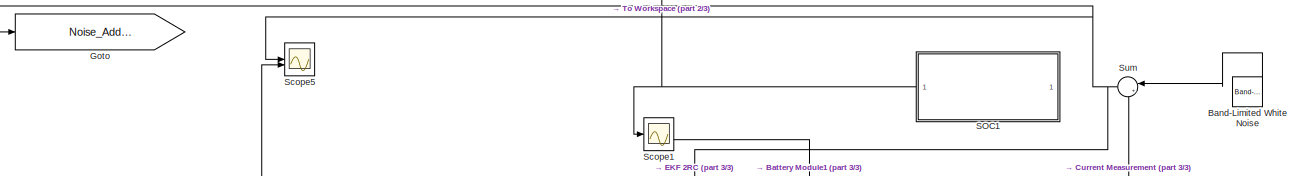
[diagram: root canvas - part 1/3, top center region]
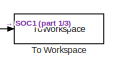
[diagram: root canvas - part 2/3, top left region]
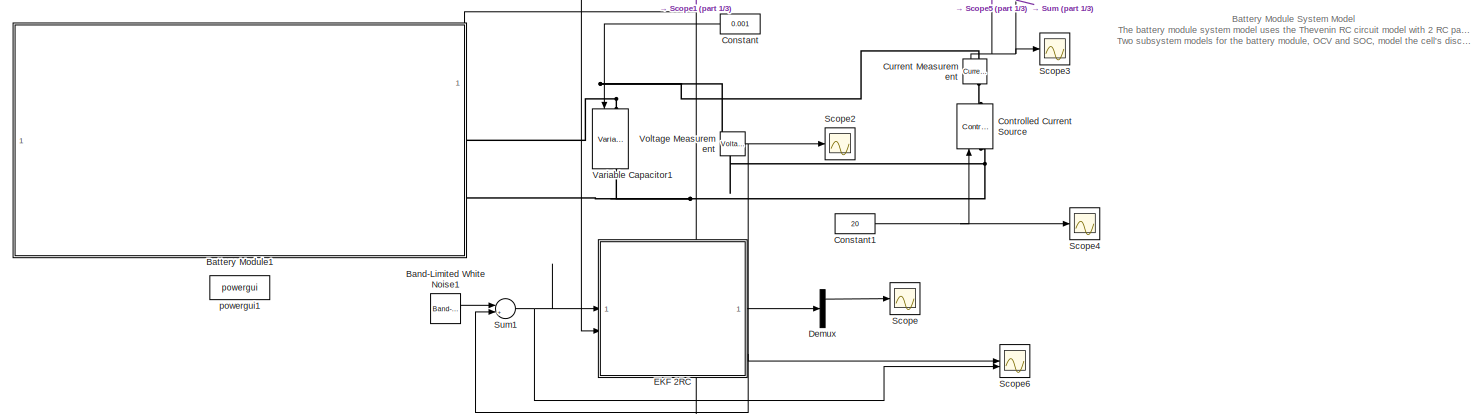
[diagram: root canvas - part 3/3, full width, middle band]
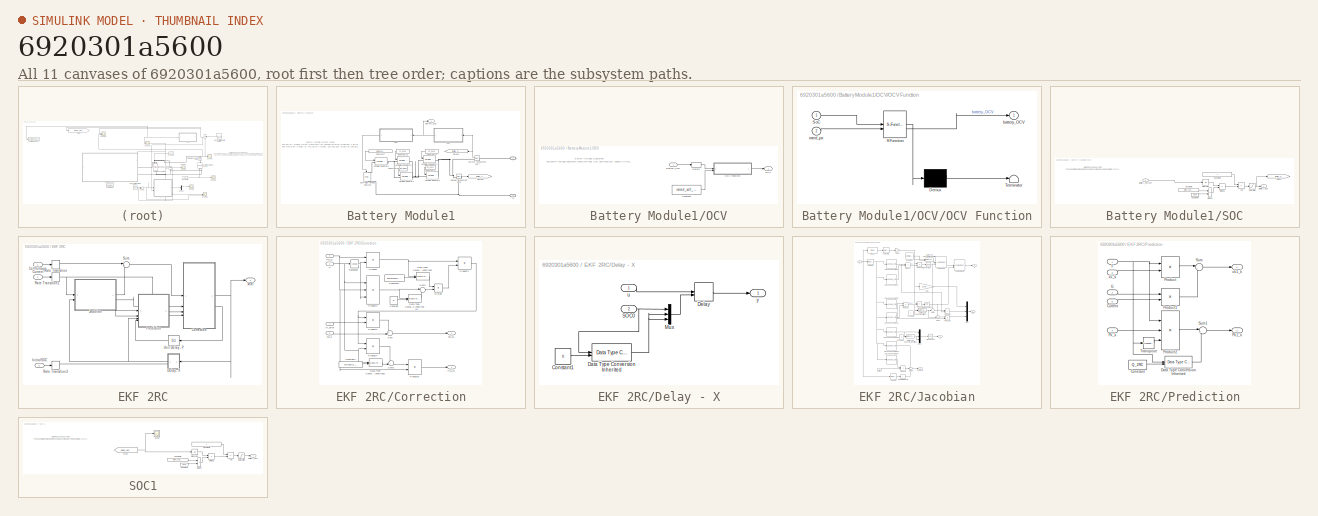
[diagram: thumbnail index - all 11 canvases of the model, root first then tree order]
MODEL slx_6920301a5600
KIND model
CONFIG AbsTol = auto
CONFIG EnableMultiTasking = off
CONFIG FixedStep = 500e-6
CONFIG MaxStep = auto
CONFIG MinStep = auto
CONFIG RelTol = 1e-3
CONFIG SampleTimeConstraint = Unconstrained
CONFIG SolverName = VariableStepAuto
CONFIG StartTime = 0.0
CONFIG StopTime = 10
BLOCK [Reference] Band-Limited White Noise  REF=simulink/Sources/Band-Limited
White Noise
  SourceBlock = simulink/Sources/Band-Limited\nWhite Noise
  SourceType = Band-Limited White Noise.
BLOCK [Reference] Band-Limited White Noise1  REF=simulink/Sources/Band-Limited
White Noise
  SourceBlock = simulink/Sources/Band-Limited\nWhite Noise
  SourceType = Band-Limited White Noise.
BLOCK [SubSystem] Battery Module1
  PortSchema = {"entries":[{"content":{"sides":[{"content":{},"type":"ConnectorPlacement.EquallySpacedRectSide","uuid":"1cf2e637-c056-448b-9d8f-ed664b461c4e"},{"content":{"connectorIds":["RConn1","RConn2"],"side":"RIGHT"},"type":"ConnectorPlacement.EquallySpacedRectSide","uuid":"9015fd1e-0347-435a-aa67-edb519119c95"},{"content":{"connectorIds":["Out1"],"side":"TOP"},"type":"ConnectorPlacement.EquallySpacedRectSi...<+235ch>
BLOCK [PMIOPort] Battery Module1/+
  Side = Right
BLOCK [PMIOPort] Battery Module1/+1
  Port = 2
  Side = Right
BLOCK [Outport] Battery Module1/Battery_SoC
BLOCK [Constant] Battery Module1/Constant10
  Value = R1_pack
BLOCK [Constant] Battery Module1/Constant12
  Value = C1_pack
BLOCK [Constant] Battery Module1/Constant13
  Value = R2_pack
BLOCK [Constant] Battery Module1/Constant14
  Value = C2_pack
BLOCK [Constant] Battery Module1/Constant7
  Value = internal_resistance_pack
BLOCK [Reference] Battery Module1/Controlled Voltage Source3  REF=spsControlledVoltageSourceLib/Controlled Voltage Source
  NameLocation = top
  SourceBlock = spsControlledVoltageSourceLib/Controlled Voltage Source
  SourceType = Controlled Voltage Source
BLOCK [Reference] Battery Module1/Current Measurement7  REF=spsCurrentMeasurementLib/Current Measurement
  NameLocation = top
  SourceBlock = spsCurrentMeasurementLib/Current Measurement
  SourceType = Current Measurement
  UserDataPersistent = on
BLOCK [Goto] Battery Module1/Goto20
  GotoTag = Battery_Voltage
  TagVisibility = global
BLOCK [Goto] Battery Module1/Goto21
  GotoTag = Battery_Current
  TagVisibility = global
BLOCK [SubSystem] Battery Module1/OCV
  NameLocation = top
BLOCK [Inport] Battery Module1/OCV/Battery_SoC
BLOCK [Constant] Battery Module1/OCV/Constant
  Value = rated_cell_capacity
BLOCK [Delay] Battery Module1/OCV/Delay2
  DelayLength = 1
  InitialCondition = 1
  InputPortMap = u0
BLOCK [Outport] Battery Module1/OCV/OCV
BLOCK [SubSystem] Battery Module1/OCV/OCV Function
  ErrorFcn = Stateflow.Translate.translate
  PermitHierarchicalResolution = ExplicitOnly
  SFBlockType = MATLAB Function
  TreatAsAtomicUnit = on
BLOCK [Demux] Battery Module1/OCV/OCV Function/ Demux 
  Outputs = 1
BLOCK [S-Function] Battery Module1/OCV/OCV Function/ SFunction 
  EnableBusSupport = on
  FunctionName = sf_sfun
  PortCounts = [2 2]
  SFcnIsStateOwnerBlock = off
  SFunctionDeploymentMode = off
  Tag = Stateflow S-Function 2
BLOCK [Terminator] Battery Module1/OCV/OCV Function/ Terminator 
BLOCK [Inport] Battery Module1/OCV/OCV Function/SoC
BLOCK [Outport] Battery Module1/OCV/OCV Function/battery_OCV
BLOCK [Inport] Battery Module1/OCV/OCV Function/rated_pa
  Port = 2
BLOCK [SubSystem] Battery Module1/SOC
  NameLocation = top
BLOCK [Sum] Battery Module1/SOC/Add
  IconShape = rectangular
  Inputs = +-
BLOCK [Inport] Battery Module1/SOC/Battery_Current
BLOCK [Outport] Battery Module1/SOC/Battery_SoC
BLOCK [Constant] Battery Module1/SOC/Constant4
  Value = 3600
BLOCK [Constant] Battery Module1/SOC/Constant5
  Value = rated_cell_capacity
BLOCK [Constant] Battery Module1/SOC/Constant6
BLOCK [Product] Battery Module1/SOC/Divide3
  Inputs = */
BLOCK [Product] Battery Module1/SOC/Divide4
  Inputs = **
BLOCK [Goto] Battery Module1/SOC/Goto23
  GotoTag = Battery_SoC
  TagVisibility = global
BLOCK [Integrator] Battery Module1/SOC/Integrator
BLOCK [Saturate] Battery Module1/SOC/Saturation
  LowerLimit = 0
  UpperLimit = 1
BLOCK [Reference] Battery Module1/Variable Capacitor3  REF=spsVariableCapacitorLib/Variable Capacitor
  SourceBlock = spsVariableCapacitorLib/Variable Capacitor
  SourceType = Variable Capacitor
BLOCK [Reference] Battery Module1/Variable Capacitor4  REF=spsVariableCapacitorLib/Variable Capacitor
  SourceBlock = spsVariableCapacitorLib/Variable Capacitor
  SourceType = Variable Capacitor
BLOCK [Reference] Battery Module1/Variable Resistor1  REF=spsVariableResistorLib/Variable Resistor
  SourceBlock = spsVariableResistorLib/Variable Resistor
  SourceType = Variable Resistor
BLOCK [Reference] Battery Module1/Variable Resistor2  REF=spsVariableResistorLib/Variable Resistor
  SourceBlock = spsVariableResistorLib/Variable Resistor
  SourceType = Variable Resistor
BLOCK [Reference] Battery Module1/Variable Resistor6  REF=spsVariableResistorLib/Variable Resistor
  LibrarySourceBlock = sps_lib/Passives/Variable Resistor
  SourceBlock = spsVariableResistorLib/Variable Resistor
  SourceType = Variable Resistor
BLOCK [Reference] Battery Module1/Voltage Measurement5  REF=spsVoltageMeasurementLib/Voltage Measurement
  SourceBlock = spsVoltageMeasurementLib/Voltage Measurement
  SourceType = Voltage Measurement
  UserDataPersistent = on
BLOCK [Constant] Constant
  NameLocation = top
  Value = 0.001
BLOCK [Constant] Constant1
  Value = 20
BLOCK [Reference] Controlled Current Source  REF=spsControlledCurrentSourceLib/Controlled Current Source
  LibrarySourceBlock = sps_lib/Sources/Controlled Current Source
  SourceBlock = spsControlledCurrentSourceLib/Controlled Current Source
  SourceType = Controlled Current Source
BLOCK [Reference] Current Measurement  REF=spsCurrentMeasurementLib/Current Measurement
  LibrarySourceBlock = sps_lib/Sensors and Measurements/Current Measurement
  NameLocation = right
  SourceBlock = spsCurrentMeasurementLib/Current Measurement
  SourceType = Current Measurement
  UserDataPersistent = on
BLOCK [Demux] Demux
  Outputs = 3
BLOCK [SubSystem] EKF 2RC
  LibrarySourceBlock = BatteryEstimators/SOC Estimator\n(Kalman Filter)/Kalman Filter/EKF 2RC
  VariantControl = EKF 2RC
BLOCK [Inport] EKF 2RC/CellVoltage
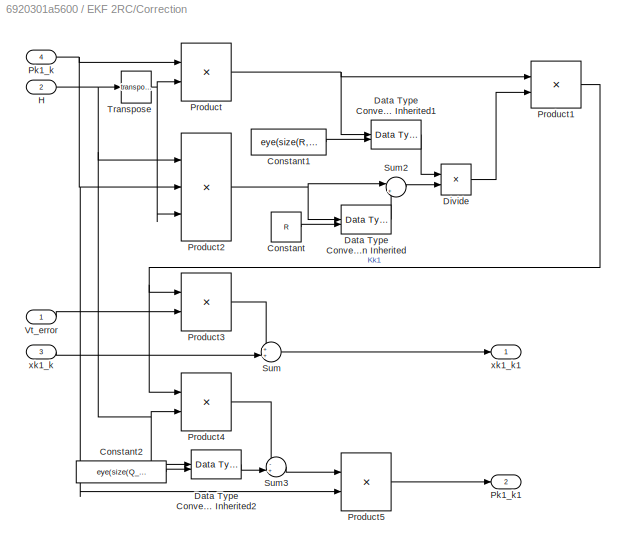
BLOCK [SubSystem] EKF 2RC/Correction
BLOCK [Constant] EKF 2RC/Correction/Constant
  Value = R
BLOCK [Constant] EKF 2RC/Correction/Constant1
  Value = eye(size(R,1))
BLOCK [Constant] EKF 2RC/Correction/Constant2
  Value = eye(size(Q_2RC,1))
BLOCK [Reference] EKF 2RC/Correction/Data Type Conversion Inherited  REF=simulink/Signal
Attributes/Data Type
Conversion
Inherited
  SourceBlock = simulink/Signal\nAttributes/Data Type\nConversion\nInherited
  SourceType = Conversion Inherited
BLOCK [Reference] EKF 2RC/Correction/Data Type Conversion Inherited1  REF=simulink/Signal
Attributes/Data Type
Conversion
Inherited
  SourceBlock = simulink/Signal\nAttributes/Data Type\nConversion\nInherited
  SourceType = Conversion Inherited
BLOCK [Reference] EKF 2RC/Correction/Data Type Conversion Inherited2  REF=simulink/Signal
Attributes/Data Type
Conversion
Inherited
  SourceBlock = simulink/Signal\nAttributes/Data Type\nConversion\nInherited
  SourceType = Conversion Inherited
BLOCK [Product] EKF 2RC/Correction/Divide
  Inputs = */
  Multiplication = Matrix(*)
BLOCK [Inport] EKF 2RC/Correction/H
  Port = 2
BLOCK [Inport] EKF 2RC/Correction/Pk1_k
  Port = 4
BLOCK [Outport] EKF 2RC/Correction/Pk1_k1
  Port = 2
BLOCK [Product] EKF 2RC/Correction/Product
  Multiplication = Matrix(*)
BLOCK [Product] EKF 2RC/Correction/Product1
  Multiplication = Matrix(*)
BLOCK [Product] EKF 2RC/Correction/Product2
  Inputs = 3
  Multiplication = Matrix(*)
BLOCK [Product] EKF 2RC/Correction/Product3
  Multiplication = Matrix(*)
BLOCK [Product] EKF 2RC/Correction/Product4
  Multiplication = Matrix(*)
BLOCK [Product] EKF 2RC/Correction/Product5
  Multiplication = Matrix(*)
BLOCK [Sum] EKF 2RC/Correction/Sum
  Inputs = ++|
BLOCK [Sum] EKF 2RC/Correction/Sum2
  Inputs = |++
BLOCK [Sum] EKF 2RC/Correction/Sum3
  Inputs = -+|
BLOCK [Math] EKF 2RC/Correction/Transpose
  Operator = transpose
BLOCK [Inport] EKF 2RC/Correction/Vt_error
BLOCK [Inport] EKF 2RC/Correction/xk1_k
  Port = 3
BLOCK [Outport] EKF 2RC/Correction/xk1_k1
BLOCK [Inport] EKF 2RC/Current
  Port = 2
BLOCK [SubSystem] EKF 2RC/Delay - X
  PortSchema = {"entries":[{"content":{"sides":[{"content":{"connectorIds":["In1"]},"type":"ConnectorPlacement.EquallySpacedRectSide","uuid":"3362b6e3-9ef0-414f-8c36-2f543f704d9c"},{"content":{"connectorIds":["Out1","In2"],"side":"RIGHT"},"type":"ConnectorPlacement.EquallySpacedRectSide","uuid":"11e7d0c5-4a27-4b8c-b505-ab30596c2b25"},{"content":{"connectorIds":[],"side":"TOP"},"type":"ConnectorPlacement.EquallyS...<+246ch>
BLOCK [Constant] EKF 2RC/Delay - X/Constant1
  Value = 0
BLOCK [Reference] EKF 2RC/Delay - X/Data Type Conversion Inherited  REF=simulink/Signal
Attributes/Data Type
Conversion
Inherited
  SourceBlock = simulink/Signal\nAttributes/Data Type\nConversion\nInherited
  SourceType = Conversion Inherited
BLOCK [Delay] EKF 2RC/Delay - X/Delay
  DelayLength = 1
  InitialConditionSource = Input port
  InputPortMap = u0,p4
BLOCK [Mux] EKF 2RC/Delay - X/Mux
  DisplayOption = bar
  Inputs = 3
BLOCK [Inport] EKF 2RC/Delay - X/SOC0
  Port = 2
BLOCK [Inport] EKF 2RC/Delay - X/u
BLOCK [Outport] EKF 2RC/Delay - X/y
BLOCK [Inport] EKF 2RC/InitialSOC
  Port = 3
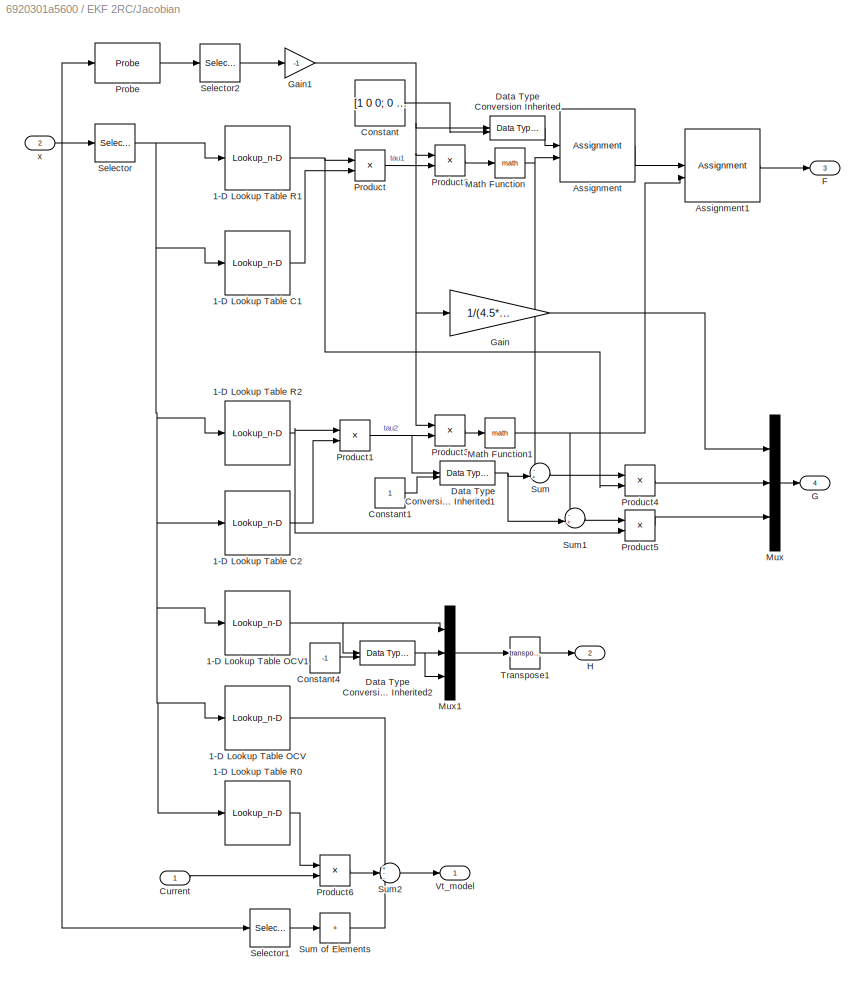
BLOCK [SubSystem] EKF 2RC/Jacobian
BLOCK [Lookup_n-D] EKF 2RC/Jacobian/1-D Lookup Table C1
  BreakpointsForDimension1 = [0,10,20,30,40,50,60,70,80,90,100]
  BreakpointsForDimension2 = T_vec
  InputPortMap = u0
  InternalRulePriority = Speed
  NumberOfTableDimensions = 1
  RndMeth = Simplest
  Table = [1000,1100,1200,1300,1400,1500,1600,1700,1800,1900,2000]
BLOCK [Lookup_n-D] EKF 2RC/Jacobian/1-D Lookup Table C2
  BreakpointsForDimension1 = [10,20,30,40,50,60,70,80,90,100]
  BreakpointsForDimension2 = T_vec
  InputPortMap = u0
  InternalRulePriority = Speed
  NumberOfTableDimensions = 1
  RndMeth = Simplest
  Table = [500,550,600,650,700,750,800,850,900,950]
BLOCK [Lookup_n-D] EKF 2RC/Jacobian/1-D Lookup Table OCV
  BreakpointsForDimension1 = [10,20,30,40,50,60,70,80,90,100]
  BreakpointsForDimension2 = T_vec
  InputPortMap = u0
  InternalRulePriority = Speed
  NumberOfTableDimensions = 1
  RndMeth = Simplest
  Table = [3.2,3.3,3.4,3.5,3.6,3.7,3.8,3.9,4.0,4.1]
BLOCK [Lookup_n-D] EKF 2RC/Jacobian/1-D Lookup Table OCV1
  BreakpointsForDimension1 = [10,20,30,40,50,60,70,80,90,100]
  BreakpointsForDimension2 = T_vec
  InputPortMap = u0
  InternalRulePriority = Speed
  NumberOfTableDimensions = 1
  RndMeth = Simplest
  Table = [0.05,0.04,0.04,0.03,0.02,0.02,0.02,0.01,0.01,0.00]
BLOCK [Lookup_n-D] EKF 2RC/Jacobian/1-D Lookup Table R0
  BreakpointsForDimension1 = [0,10,20,30,40,50,60,70,80,90,100]
  BreakpointsForDimension2 = T_vec
  InputPortMap = u0
  InternalRulePriority = Speed
  NumberOfTableDimensions = 1
  RndMeth = Simplest
  Table = [0.05,0.045,0.04,0.035,0.03,0.025,0.02,0.015,0.01,0.005,0.001]
BLOCK [Lookup_n-D] EKF 2RC/Jacobian/1-D Lookup Table R1
  BreakpointsForDimension1 = [0,10,20,30,40,50,60,70,80,90,100]
  BreakpointsForDimension2 = T_vec
  InputPortMap = u0
  InternalRulePriority = Speed
  NumberOfTableDimensions = 1
  RndMeth = Simplest
  Table = [0.02,0.018,0.016,0.014,0.012,0.01,0.008,0.006,0.004,0.002,0.001]
BLOCK [Lookup_n-D] EKF 2RC/Jacobian/1-D Lookup Table R2
  BreakpointsForDimension1 = [0,10,20,30,40,50,60,70,80,90,100]
  BreakpointsForDimension2 = T_vec
  InputPortMap = u0
  InternalRulePriority = Speed
  NumberOfTableDimensions = 1
  RndMeth = Simplest
  Table = [0.05,0.045,0.04,0.035,0.03,0.025,0.02,0.015,0.01,0.005,0.001]
BLOCK [Assignment] EKF 2RC/Jacobian/Assignment
  DiagnosticForDimensions = Warning
  IndexOptions = Index vector (dialog),Index vector (dialog)
  Indices = 2,2
  NumberOfDimensions = 2
  OutputSizes = 1,1
BLOCK [Assignment] EKF 2RC/Jacobian/Assignment1
  DiagnosticForDimensions = Warning
  IndexOptions = Index vector (dialog),Index vector (dialog)
  Indices = 3,3
  NumberOfDimensions = 2
  OutputSizes = 1,1
BLOCK [Constant] EKF 2RC/Jacobian/Constant
  Value = [1 0  0;\n0 0 0;\n0 0 0]
BLOCK [Constant] EKF 2RC/Jacobian/Constant1
BLOCK [Constant] EKF 2RC/Jacobian/Constant4
  Value = -1
BLOCK [Inport] EKF 2RC/Jacobian/Current
BLOCK [Reference] EKF 2RC/Jacobian/Data Type Conversion Inherited  REF=simulink/Signal
Attributes/Data Type
Conversion
Inherited
  SourceBlock = simulink/Signal\nAttributes/Data Type\nConversion\nInherited
  SourceType = Conversion Inherited
BLOCK [Reference] EKF 2RC/Jacobian/Data Type Conversion Inherited1  REF=simulink/Signal
Attributes/Data Type
Conversion
Inherited
  SourceBlock = simulink/Signal\nAttributes/Data Type\nConversion\nInherited
  SourceType = Conversion Inherited
BLOCK [Reference] EKF 2RC/Jacobian/Data Type Conversion Inherited2  REF=simulink/Signal
Attributes/Data Type
Conversion
Inherited
  SourceBlock = simulink/Signal\nAttributes/Data Type\nConversion\nInherited
  SourceType = Conversion Inherited
BLOCK [Outport] EKF 2RC/Jacobian/F
  Port = 3
BLOCK [Outport] EKF 2RC/Jacobian/G
  Port = 4
BLOCK [Gain] EKF 2RC/Jacobian/Gain
  Gain = 1/(4.5*3600)
BLOCK [Gain] EKF 2RC/Jacobian/Gain1
  Gain = -1
BLOCK [Outport] EKF 2RC/Jacobian/H
  Port = 2
BLOCK [Math] EKF 2RC/Jacobian/Math Function
BLOCK [Math] EKF 2RC/Jacobian/Math Function1
BLOCK [Mux] EKF 2RC/Jacobian/Mux
  DisplayOption = bar
  Inputs = 3
BLOCK [Mux] EKF 2RC/Jacobian/Mux1
  DisplayOption = bar
  Inputs = 3
BLOCK [Probe] EKF 2RC/Jacobian/Probe
  ProbeComplexSignal = off
  ProbeSampleTimeDataType = Same as input
  ProbeWidth = off
BLOCK [Product] EKF 2RC/Jacobian/Product
BLOCK [Product] EKF 2RC/Jacobian/Product1
BLOCK [Product] EKF 2RC/Jacobian/Product2
  Inputs = */
BLOCK [Product] EKF 2RC/Jacobian/Product3
  Inputs = */
BLOCK [Product] EKF 2RC/Jacobian/Product4
BLOCK [Product] EKF 2RC/Jacobian/Product5
BLOCK [Product] EKF 2RC/Jacobian/Product6
BLOCK [Selector] EKF 2RC/Jacobian/Selector
  IndexOptions = Index vector (dialog)
  Indices = 1
  InputPortWidth = 3
  OutputSizes = 1
BLOCK [Selector] EKF 2RC/Jacobian/Selector1
  IndexOptions = Index vector (dialog)
  Indices = [2 3]
  InputPortWidth = 3
  OutputSizes = 1
BLOCK [Selector] EKF 2RC/Jacobian/Selector2
  IndexOptions = Index vector (dialog)
  Indices = 1
  InputPortWidth = 2
  OutputSizes = 1
BLOCK [Sum] EKF 2RC/Jacobian/Sum
  Inputs = -+|
BLOCK [Sum] EKF 2RC/Jacobian/Sum of Elements
  IconShape = rectangular
  Inputs = +
BLOCK [Sum] EKF 2RC/Jacobian/Sum1
  Inputs = -+|
BLOCK [Sum] EKF 2RC/Jacobian/Sum2
  Inputs = +--
BLOCK [Math] EKF 2RC/Jacobian/Transpose1
  Operator = transpose
BLOCK [Outport] EKF 2RC/Jacobian/Vt_model
BLOCK [Inport] EKF 2RC/Jacobian/x
  Port = 2
BLOCK [SubSystem] EKF 2RC/Prediction
  PortSchema = {"entries":[{"content":{"sides":[{"content":{"connectorIds":["In1","In2","In3","In4"]},"type":"ConnectorPlacement.EquallySpacedRectSide","uuid":"769ad24d-2d7f-40f9-a049-32dd41bae35d"},{"content":{"connectorIds":["Out1","Out2"],"side":"RIGHT"},"type":"ConnectorPlacement.EquallySpacedRectSide","uuid":"b91eca28-d625-4904-9292-6163fd48fb7b"},{"content":{"connectorIds":["In5"],"side":"TOP"},"type":"Con...<+270ch>
BLOCK [Constant] EKF 2RC/Prediction/Constant
  Value = Q_2RC
BLOCK [Inport] EKF 2RC/Prediction/Current
  Port = 5
BLOCK [Reference] EKF 2RC/Prediction/Data Type Conversion Inherited  REF=simulink/Signal
Attributes/Data Type
Conversion
Inherited
  SourceBlock = simulink/Signal\nAttributes/Data Type\nConversion\nInherited
  SourceType = Conversion Inherited
BLOCK [Inport] EKF 2RC/Prediction/F
BLOCK [Inport] EKF 2RC/Prediction/G
  Port = 2
BLOCK [Outport] EKF 2RC/Prediction/Pk1_k
  Port = 2
BLOCK [Inport] EKF 2RC/Prediction/Pk_k
  Port = 4
BLOCK [Product] EKF 2RC/Prediction/Product
  Multiplication = Matrix(*)
BLOCK [Product] EKF 2RC/Prediction/Product1
  Multiplication = Matrix(*)
BLOCK [Product] EKF 2RC/Prediction/Product2
  Inputs = 3
  Multiplication = Matrix(*)
BLOCK [Sum] EKF 2RC/Prediction/Sum
  Inputs = |++
BLOCK [Sum] EKF 2RC/Prediction/Sum1
  Inputs = |++
BLOCK [Math] EKF 2RC/Prediction/Transpose
  Operator = transpose
BLOCK [Outport] EKF 2RC/Prediction/xk1_k
BLOCK [Inport] EKF 2RC/Prediction/xk_k
  Port = 3
BLOCK [RateTransition] EKF 2RC/Rate Transition
BLOCK [RateTransition] EKF 2RC/Rate Transition1
BLOCK [RateTransition] EKF 2RC/Rate Transition3
BLOCK [Sum] EKF 2RC/Sum
  Inputs = |+-
BLOCK [UnitDelay] EKF 2RC/Unit Delay - P
  HasFrameUpgradeWarning = on
  SampleTime = -1
BLOCK [Outport] EKF 2RC/xhat
BLOCK [Goto] Goto
  GotoTag = Noise_Added_Current
  TagVisibility = global
BLOCK [SubSystem] SOC1
  NameLocation = top
BLOCK [Sum] SOC1/Add
  IconShape = rectangular
  Inputs = +-
BLOCK [Outport] SOC1/Battery_SoC
BLOCK [Constant] SOC1/Constant4
  Value = 3600
BLOCK [Constant] SOC1/Constant5
  Value = rated_cell_capacity
BLOCK [Constant] SOC1/Constant6
BLOCK [Product] SOC1/Divide3
  Inputs = */
BLOCK [Product] SOC1/Divide4
  Inputs = **
BLOCK [From] SOC1/From
  GotoTag = Noise_Added_Current
  TagVisibility = global
BLOCK [Integrator] SOC1/Integrator
BLOCK [Saturate] SOC1/Saturation
  LowerLimit = 0
  UpperLimit = 1
BLOCK [Scope] SOC1/Scope
  Floating = off
  NumInputPorts = 1
  ScopeSpecificationString = Simulink.scopes.TimeScopeBlockCfg('CurrentConfiguration', extmgr.ConfigurationSet(extmgr.Configuration('Core','General UI',true),extmgr.Configuration('Core','Source UI',true),extmgr.Configuration('Sources','WiredSimulink',true,'DataLoggingVariableName','ScopeData2'),extmgr.Configuration('Visuals','Time Domain',true,'SerializedDisplays',{struct('MinYLimReal','-25.90652','MaxYLimReal','64.27677','YL...<+1486ch>
BLOCK [Scope] Scope
  Floating = off
  NumInputPorts = 1
  ScopeSpecificationString = Simulink.scopes.TimeScopeBlockCfg('CurrentConfiguration', extmgr.ConfigurationSet(extmgr.Configuration('Core','General UI',true),extmgr.Configuration('Core','Source UI',true),extmgr.Configuration('Sources','WiredSimulink',true),extmgr.Configuration('Visuals','Time Domain',true,'SerializedDisplays',{struct('MinYLimReal','1.08356','MaxYLimReal','2.12147','YLabelReal','','MinYLimMag','1.08356','MaxYL...<+1554ch>
BLOCK [Scope] Scope1
  Floating = off
  NumInputPorts = 2
  ScopeSpecificationString = Simulink.scopes.TimeScopeBlockCfg('CurrentConfiguration', extmgr.ConfigurationSet(extmgr.Configuration('Core','General UI',true),extmgr.Configuration('Core','Source UI',true),extmgr.Configuration('Sources','WiredSimulink',true,'DataLogging',true,'DataLoggingVariableName','ScopeData1'),extmgr.Configuration('Visuals','Time Domain',true,'TimeAxisLabels','All','SerializedDisplays',{struct('MinYLimReal...<+1626ch>
BLOCK [Scope] Scope2
  Floating = off
  NumInputPorts = 1
  ScopeSpecificationString = Simulink.scopes.TimeScopeBlockCfg('CurrentConfiguration', extmgr.ConfigurationSet(extmgr.Configuration('Core','General UI',true),extmgr.Configuration('Core','Source UI',true),extmgr.Configuration('Sources','WiredSimulink',true,'DataLoggingVariableName','ScopeData2'),extmgr.Configuration('Visuals','Time Domain',true,'SerializedDisplays',{struct('MinYLimReal','2.31841','MaxYLimReal','4.13398','YLabe...<+1494ch>
BLOCK [Scope] Scope3
  Floating = off
  NumInputPorts = 1
  ScopeSpecificationString = Simulink.scopes.TimeScopeBlockCfg('CurrentConfiguration', extmgr.ConfigurationSet(extmgr.Configuration('Core','General UI',true),extmgr.Configuration('Core','Source UI',true),extmgr.Configuration('Sources','WiredSimulink',true,'DataLoggingVariableName','ScopeData3'),extmgr.Configuration('Visuals','Time Domain',true,'SerializedDisplays',{struct('MinYLimReal','10.00000','MaxYLimReal','30.00000','YLa...<+1473ch>
BLOCK [Scope] Scope4
  Floating = off
  NumInputPorts = 1
  ScopeSpecificationString = Simulink.scopes.TimeScopeBlockCfg('CurrentConfiguration', extmgr.ConfigurationSet(extmgr.Configuration('Core','General UI',true),extmgr.Configuration('Core','Source UI',true),extmgr.Configuration('Sources','WiredSimulink',true,'DataLoggingVariableName','ScopeData4'),extmgr.Configuration('Visuals','Time Domain',true,'SerializedDisplays',{struct('MinYLimReal','10.00000','MaxYLimReal','30.00000','YLa...<+1498ch>
BLOCK [Scope] Scope5
  Floating = off
  NumInputPorts = 2
  ScopeSpecificationString = Simulink.scopes.TimeScopeBlockCfg('CurrentConfiguration', extmgr.ConfigurationSet(extmgr.Configuration('Core','General UI',true,'DisplayFullSourceName',true),extmgr.Configuration('Core','Source UI',true),extmgr.Configuration('Sources','WiredSimulink',true,'DataLoggingVariableName','ScopeData5','SampleTime','1'),extmgr.Configuration('Visuals','Time Domain',true,'SerializedDisplays',{struct('MinYLim...<+1801ch>
BLOCK [Scope] Scope6
  Floating = off
  NumInputPorts = 2
  ScopeSpecificationString = Simulink.scopes.TimeScopeBlockCfg('CurrentConfiguration', extmgr.ConfigurationSet(extmgr.Configuration('Core','General UI',true),extmgr.Configuration('Core','Source UI',true),extmgr.Configuration('Sources','WiredSimulink',true,'DataLoggingVariableName','ScopeData1'),extmgr.Configuration('Visuals','Time Domain',true,'SerializedDisplays',{struct('MinYLimReal','-16.98238','MaxYLimReal','21.19366','YL...<+1648ch>
BLOCK [Sum] Sum
  Inputs = |++
  NameLocation = top
BLOCK [Sum] Sum1
  Inputs = |++
BLOCK [ToWorkspace] To Workspace
  FixptAsFi = on
  MaxDataPoints = inf
  SampleTime = -1
  SaveFormat = Timeseries
  VariableName = Soc_Data
BLOCK [Reference] Variable Capacitor1  REF=spsVariableCapacitorLib/Variable Capacitor
  LibrarySourceBlock = sps_lib/Passives/Variable Capacitor
  NameLocation = left
  SourceBlock = spsVariableCapacitorLib/Variable Capacitor
  SourceType = Variable Capacitor
BLOCK [Reference] Voltage Measurement  REF=spsVoltageMeasurementLib/Voltage Measurement
  LibrarySourceBlock = sps_lib/Sensors and Measurements/Voltage Measurement
  SourceBlock = spsVoltageMeasurementLib/Voltage Measurement
  SourceType = Voltage Measurement
  UserDataPersistent = on
BLOCK [Reference] powergui1  REF=sps_lib/powergui
  LibrarySourceBlock = sps_lib/powergui
  SourceBlock = sps_lib/powergui
  SourceType = PSB option menu block
ANNOTATION (root): Battery Module System Model The battery module system model uses the Thevenin RC circuit model with 2 RC pair and applies the same concept on a pack level. The individual cell parameters are multiplied by the number of serial and parallel cells per battery module and then multiplied by the number of battery module s to account for the system as a whole. The values can be adjusted in the matlab scr...<+140ch>
ANNOTATION Battery Module1: Battery Module System Model The battery module system model uses the Thevenin RC circuit model with 2 RC pair and applies the same concept on a pack level. The individual cell parameters are multiplied by the number of serial and parallel cells per battery module and then multiplied by the number of battery modules to account for the system as a whole. The values can be adjusted in the matlab scri...<+138ch>
ANNOTATION Battery Module1/OCV: Battery Voltage Subsystem The battery voltage subsystem takes the input SoC and rated cell capacity to map the cell discharge curve generated by the curve fitting function and outputs a voltage to as an input to the voltage source.
ANNOTATION Battery Module1/SOC: State of Charge Subsystem The SoC estimator implements the Coulomb counting where the input battery current is accumulated over time and divided by the rated capacity to a percentage of the current capacity to the overall capacity. The output of this subsystem outputs the state of charge as a percentage.
ANNOTATION SOC1: State of Charge Subsystem The SoC estimator implements the Coulomb counting where the input battery current is accumulated over time and divided by the rated capacity to a percentage of the current capacity to the overall capacity. The output of this subsystem outputs the state of charge as a percentage.
LINE Band-Limited White Noise1:1 -> Sum1:1
LINE Band-Limited White Noise:1 -> Sum:1
LINE Battery Module1/Constant10:1 -> Battery Module1/Variable Resistor1:1
LINE Battery Module1/Constant12:1 -> Battery Module1/Variable Capacitor3:1
LINE Battery Module1/Constant13:1 -> Battery Module1/Variable Resistor2:1
LINE Battery Module1/Constant14:1 -> Battery Module1/Variable Capacitor4:1
LINE Battery Module1/Constant7:1 -> Battery Module1/Variable Resistor6:1
NET Battery Module1/Current Measurement7:1 -> Battery Module1/Goto21:1, Battery Module1/SOC:1
LINE Battery Module1/OCV/Battery_SoC:1 -> Battery Module1/OCV/Delay2:1
LINE Battery Module1/OCV/Constant:1 -> Battery Module1/OCV/OCV Function:2
LINE Battery Module1/OCV/Delay2:1 -> Battery Module1/OCV/OCV Function:1
LINE Battery Module1/OCV/OCV Function:1 -> Battery Module1/OCV/OCV:1
LINE Battery Module1/OCV:1 -> Battery Module1/Controlled Voltage Source3:1
LINE Battery Module1/SOC/Add:1 -> Battery Module1/SOC/Saturation:1
LINE Battery Module1/SOC/Battery_Current:1 -> Battery Module1/SOC/Integrator:1
LINE Battery Module1/SOC/Constant4:1 -> Battery Module1/SOC/Divide4:2
LINE Battery Module1/SOC/Constant5:1 -> Battery Module1/SOC/Divide4:1
LINE Battery Module1/SOC/Constant6:1 -> Battery Module1/SOC/Add:1
LINE Battery Module1/SOC/Divide3:1 -> Battery Module1/SOC/Add:2
LINE Battery Module1/SOC/Divide4:1 -> Battery Module1/SOC/Divide3:2
LINE Battery Module1/SOC/Integrator:1 -> Battery Module1/SOC/Divide3:1
NET Battery Module1/SOC/Saturation:1 -> Battery Module1/SOC/Battery_SoC:1, Battery Module1/SOC/Goto23:1
NET Battery Module1/SOC:1 -> Battery Module1/Battery_SoC:1, Battery Module1/OCV:1
LINE Battery Module1/Voltage Measurement5:1 -> Battery Module1/Goto20:1
NET Battery Module1:1 -> EKF 2RC:3, Scope1:2
NET Constant1:1 -> Controlled Current Source:1, Scope4:1
LINE Constant:1 -> Variable Capacitor1:1
NET Current Measurement:1 -> Scope3:1, Scope5:2, Sum:2
LINE Demux:1 -> Scope:1
LINE EKF 2RC/CellVoltage:1 -> EKF 2RC/Rate Transition:1
LINE EKF 2RC/Correction/Constant1:1 -> EKF 2RC/Correction/Data Type Conversion Inherited1:2
LINE EKF 2RC/Correction/Constant2:1 -> EKF 2RC/Correction/Data Type Conversion Inherited2:2
LINE EKF 2RC/Correction/Constant:1 -> EKF 2RC/Correction/Data Type Conversion Inherited:2
LINE EKF 2RC/Correction/Data Type Conversion Inherited1:1 -> EKF 2RC/Correction/Divide:1
LINE EKF 2RC/Correction/Data Type Conversion Inherited2:1 -> EKF 2RC/Correction/Sum3:2
LINE EKF 2RC/Correction/Data Type Conversion Inherited:1 -> EKF 2RC/Correction/Sum2:2
LINE EKF 2RC/Correction/Divide:1 -> EKF 2RC/Correction/Product1:2
NET EKF 2RC/Correction/H:1 -> EKF 2RC/Correction/Data Type Conversion Inherited2:1, EKF 2RC/Correction/Product2:1, EKF 2RC/Correction/Product4:2, EKF 2RC/Correction/Transpose:1
NET EKF 2RC/Correction/Pk1_k:1 -> EKF 2RC/Correction/Product2:2, EKF 2RC/Correction/Product5:2, EKF 2RC/Correction/Product:1
NET EKF 2RC/Correction/Product1:1 -> EKF 2RC/Correction/Product3:1, EKF 2RC/Correction/Product4:1
NET EKF 2RC/Correction/Product2:1 -> EKF 2RC/Correction/Data Type Conversion Inherited:1, EKF 2RC/Correction/Sum2:1
LINE EKF 2RC/Correction/Product3:1 -> EKF 2RC/Correction/Sum:1
LINE EKF 2RC/Correction/Product4:1 -> EKF 2RC/Correction/Sum3:1
LINE EKF 2RC/Correction/Product5:1 -> EKF 2RC/Correction/Pk1_k1:1
NET EKF 2RC/Correction/Product:1 -> EKF 2RC/Correction/Data Type Conversion Inherited1:1, EKF 2RC/Correction/Product1:1
LINE EKF 2RC/Correction/Sum2:1 -> EKF 2RC/Correction/Divide:2
LINE EKF 2RC/Correction/Sum3:1 -> EKF 2RC/Correction/Product5:1
LINE EKF 2RC/Correction/Sum:1 -> EKF 2RC/Correction/xk1_k1:1
NET EKF 2RC/Correction/Transpose:1 -> EKF 2RC/Correction/Product2:3, EKF 2RC/Correction/Product:2
LINE EKF 2RC/Correction/Vt_error:1 -> EKF 2RC/Correction/Product3:2
LINE EKF 2RC/Correction/xk1_k:1 -> EKF 2RC/Correction/Sum:2
NET EKF 2RC/Correction:1 -> EKF 2RC/Delay - X:1, EKF 2RC/xhat:1
LINE EKF 2RC/Correction:2 -> EKF 2RC/Unit Delay - P:1
LINE EKF 2RC/Current:1 -> EKF 2RC/Rate Transition1:1
LINE EKF 2RC/Delay - X/Constant1:1 -> EKF 2RC/Delay - X/Data Type Conversion Inherited:2
NET EKF 2RC/Delay - X/Data Type Conversion Inherited:1 -> EKF 2RC/Delay - X/Mux:2, EKF 2RC/Delay - X/Mux:3
LINE EKF 2RC/Delay - X/Delay:1 -> EKF 2RC/Delay - X/y:1
LINE EKF 2RC/Delay - X/Mux:1 -> EKF 2RC/Delay - X/Delay:2
NET EKF 2RC/Delay - X/SOC0:1 -> EKF 2RC/Delay - X/Data Type Conversion Inherited:1, EKF 2RC/Delay - X/Mux:1
LINE EKF 2RC/Delay - X/u:1 -> EKF 2RC/Delay - X/Delay:1
NET EKF 2RC/Delay - X:1 -> EKF 2RC/Jacobian:2, EKF 2RC/Prediction:3
LINE EKF 2RC/InitialSOC:1 -> EKF 2RC/Rate Transition3:1
LINE EKF 2RC/Jacobian/1-D Lookup Table C1:1 -> EKF 2RC/Jacobian/Product:2
LINE EKF 2RC/Jacobian/1-D Lookup Table C2:1 -> EKF 2RC/Jacobian/Product1:2
NET EKF 2RC/Jacobian/1-D Lookup Table OCV1:1 -> EKF 2RC/Jacobian/Data Type Conversion Inherited2:1, EKF 2RC/Jacobian/Mux1:1
LINE EKF 2RC/Jacobian/1-D Lookup Table OCV:1 -> EKF 2RC/Jacobian/Sum2:1
LINE EKF 2RC/Jacobian/1-D Lookup Table R0:1 -> EKF 2RC/Jacobian/Product6:1
NET EKF 2RC/Jacobian/1-D Lookup Table R1:1 -> EKF 2RC/Jacobian/Product4:2, EKF 2RC/Jacobian/Product:1
NET EKF 2RC/Jacobian/1-D Lookup Table R2:1 -> EKF 2RC/Jacobian/Product1:1, EKF 2RC/Jacobian/Product5:2
LINE EKF 2RC/Jacobian/Assignment1:1 -> EKF 2RC/Jacobian/F:1
LINE EKF 2RC/Jacobian/Assignment:1 -> EKF 2RC/Jacobian/Assignment1:1
LINE EKF 2RC/Jacobian/Constant1:1 -> EKF 2RC/Jacobian/Data Type Conversion Inherited1:2
LINE EKF 2RC/Jacobian/Constant4:1 -> EKF 2RC/Jacobian/Data Type Conversion Inherited2:2
LINE EKF 2RC/Jacobian/Constant:1 -> EKF 2RC/Jacobian/Data Type Conversion Inherited:2
LINE EKF 2RC/Jacobian/Current:1 -> EKF 2RC/Jacobian/Product6:2
NET EKF 2RC/Jacobian/Data Type Conversion Inherited1:1 -> EKF 2RC/Jacobian/Sum1:2, EKF 2RC/Jacobian/Sum:2
NET EKF 2RC/Jacobian/Data Type Conversion Inherited2:1 -> EKF 2RC/Jacobian/Mux1:2, EKF 2RC/Jacobian/Mux1:3
LINE EKF 2RC/Jacobian/Data Type Conversion Inherited:1 -> EKF 2RC/Jacobian/Assignment:1
NET EKF 2RC/Jacobian/Gain1:1 -> EKF 2RC/Jacobian/Data Type Conversion Inherited:1, EKF 2RC/Jacobian/Gain:1, EKF 2RC/Jacobian/Product2:1, EKF 2RC/Jacobian/Product3:1
LINE EKF 2RC/Jacobian/Gain:1 -> EKF 2RC/Jacobian/Mux:1
NET EKF 2RC/Jacobian/Math Function1:1 -> EKF 2RC/Jacobian/Assignment1:2, EKF 2RC/Jacobian/Sum1:1
NET EKF 2RC/Jacobian/Math Function:1 -> EKF 2RC/Jacobian/Assignment:2, EKF 2RC/Jacobian/Sum:1
LINE EKF 2RC/Jacobian/Mux1:1 -> EKF 2RC/Jacobian/Transpose1:1
LINE EKF 2RC/Jacobian/Mux:1 -> EKF 2RC/Jacobian/G:1
LINE EKF 2RC/Jacobian/Probe:1 -> EKF 2RC/Jacobian/Selector2:1
NET EKF 2RC/Jacobian/Product1:1 -> EKF 2RC/Jacobian/Data Type Conversion Inherited1:1, EKF 2RC/Jacobian/Product3:2
LINE EKF 2RC/Jacobian/Product2:1 -> EKF 2RC/Jacobian/Math Function:1
LINE EKF 2RC/Jacobian/Product3:1 -> EKF 2RC/Jacobian/Math Function1:1
LINE EKF 2RC/Jacobian/Product4:1 -> EKF 2RC/Jacobian/Mux:2
LINE EKF 2RC/Jacobian/Product5:1 -> EKF 2RC/Jacobian/Mux:3
LINE EKF 2RC/Jacobian/Product6:1 -> EKF 2RC/Jacobian/Sum2:2
LINE EKF 2RC/Jacobian/Product:1 -> EKF 2RC/Jacobian/Product2:2
LINE EKF 2RC/Jacobian/Selector1:1 -> EKF 2RC/Jacobian/Sum of Elements:1
LINE EKF 2RC/Jacobian/Selector2:1 -> EKF 2RC/Jacobian/Gain1:1
NET EKF 2RC/Jacobian/Selector:1 -> EKF 2RC/Jacobian/1-D Lookup Table C1:1, EKF 2RC/Jacobian/1-D Lookup Table C2:1, EKF 2RC/Jacobian/1-D Lookup Table OCV1:1, EKF 2RC/Jacobian/1-D Lookup Table OCV:1, EKF 2RC/Jacobian/1-D Lookup Table R0:1, EKF 2RC/Jacobian/1-D Lookup Table R1:1, EKF 2RC/Jacobian/1-D Lookup Table R2:1
LINE EKF 2RC/Jacobian/Sum of Elements:1 -> EKF 2RC/Jacobian/Sum2:3
LINE EKF 2RC/Jacobian/Sum1:1 -> EKF 2RC/Jacobian/Product5:1
LINE EKF 2RC/Jacobian/Sum2:1 -> EKF 2RC/Jacobian/Vt_model:1
LINE EKF 2RC/Jacobian/Sum:1 -> EKF 2RC/Jacobian/Product4:1
LINE EKF 2RC/Jacobian/Transpose1:1 -> EKF 2RC/Jacobian/H:1
NET EKF 2RC/Jacobian/x:1 -> EKF 2RC/Jacobian/Probe:1, EKF 2RC/Jacobian/Selector1:1, EKF 2RC/Jacobian/Selector:1
LINE EKF 2RC/Jacobian:1 -> EKF 2RC/Sum:2
LINE EKF 2RC/Jacobian:2 -> EKF 2RC/Correction:2
LINE EKF 2RC/Jacobian:3 -> EKF 2RC/Prediction:1
LINE EKF 2RC/Jacobian:4 -> EKF 2RC/Prediction:2
LINE EKF 2RC/Prediction/Constant:1 -> EKF 2RC/Prediction/Data Type Conversion Inherited:2
LINE EKF 2RC/Prediction/Current:1 -> EKF 2RC/Prediction/Product1:2
LINE EKF 2RC/Prediction/Data Type Conversion Inherited:1 -> EKF 2RC/Prediction/Sum1:2
NET EKF 2RC/Prediction/F:1 -> EKF 2RC/Prediction/Data Type Conversion Inherited:1, EKF 2RC/Prediction/Product2:1, EKF 2RC/Prediction/Product:1, EKF 2RC/Prediction/Transpose:1
LINE EKF 2RC/Prediction/G:1 -> EKF 2RC/Prediction/Product1:1
LINE EKF 2RC/Prediction/Pk_k:1 -> EKF 2RC/Prediction/Product2:2
LINE EKF 2RC/Prediction/Product1:1 -> EKF 2RC/Prediction/Sum:2
LINE EKF 2RC/Prediction/Product2:1 -> EKF 2RC/Prediction/Sum1:1
LINE EKF 2RC/Prediction/Product:1 -> EKF 2RC/Prediction/Sum:1
LINE EKF 2RC/Prediction/Sum1:1 -> EKF 2RC/Prediction/Pk1_k:1
LINE EKF 2RC/Prediction/Sum:1 -> EKF 2RC/Prediction/xk1_k:1
LINE EKF 2RC/Prediction/Transpose:1 -> EKF 2RC/Prediction/Product2:3
LINE EKF 2RC/Prediction/xk_k:1 -> EKF 2RC/Prediction/Product:2
LINE EKF 2RC/Prediction:1 -> EKF 2RC/Correction:3
LINE EKF 2RC/Prediction:2 -> EKF 2RC/Correction:4
NET EKF 2RC/Rate Transition1:1 -> EKF 2RC/Jacobian:1, EKF 2RC/Prediction:5
LINE EKF 2RC/Rate Transition3:1 -> EKF 2RC/Delay - X:2
LINE EKF 2RC/Rate Transition:1 -> EKF 2RC/Sum:1
LINE EKF 2RC/Sum:1 -> EKF 2RC/Correction:1
LINE EKF 2RC/Unit Delay - P:1 -> EKF 2RC/Prediction:4
LINE EKF 2RC:1 -> Demux:1
LINE SOC1/Add:1 -> SOC1/Saturation:1
LINE SOC1/Constant4:1 -> SOC1/Divide4:2
LINE SOC1/Constant5:1 -> SOC1/Divide4:1
LINE SOC1/Constant6:1 -> SOC1/Add:1
LINE SOC1/Divide3:1 -> SOC1/Add:2
LINE SOC1/Divide4:1 -> SOC1/Divide3:2
NET SOC1/From:1 -> SOC1/Integrator:1, SOC1/Scope:1
LINE SOC1/Integrator:1 -> SOC1/Divide3:1
LINE SOC1/Saturation:1 -> SOC1/Battery_SoC:1
NET SOC1:1 -> Scope1:1, To Workspace:1
NET Sum1:1 -> EKF 2RC:1, Scope6:2
NET Sum:1 -> EKF 2RC:2, Goto:1, Scope5:1
NET Voltage Measurement:1 -> Scope2:1, Scope6:1, Sum1:2
PNET net1: Battery Module1/+1:RConn1 -- Battery Module1/Controlled Voltage Source3:RConn1 -- Battery Module1/Voltage Measurement5:LConn1
PLINE Battery Module1/+:RConn1 -- Battery Module1/Current Measurement7:LConn1
PLINE Battery Module1/Controlled Voltage Source3:LConn1 -- Battery Module1/Variable Resistor6:LConn1
PNET net2: Battery Module1/Current Measurement7:RConn1 -- Battery Module1/Variable Capacitor4:RConn1 -- Battery Module1/Variable Resistor2:RConn1 -- Battery Module1/Voltage Measurement5:LConn2
PNET net3: Battery Module1/Variable Capacitor3:LConn1 -- Battery Module1/Variable Resistor1:LConn1 -- Battery Module1/Variable Resistor6:RConn1
PNET net4: Battery Module1/Variable Capacitor3:RConn1 -- Battery Module1/Variable Capacitor4:LConn1 -- Battery Module1/Variable Resistor1:RConn1 -- Battery Module1/Variable Resistor2:LConn1
PNET net5: Battery Module1:RConn1 -- Current Measurement:RConn1 -- Variable Capacitor1:LConn1 -- Voltage Measurement:LConn2
PNET net6: Battery Module1:RConn2 -- Controlled Current Source:LConn1 -- Variable Capacitor1:RConn1 -- Voltage Measurement:LConn1
PLINE Controlled Current Source:RConn1 -- Current Measurement:LConn1
note: NET lines group one-source signal fan-out (src -> all destinations, sorted); 1:1 wires keep LINE; PNET lines group multi-terminal physical nets as a canonical sorted terminal list (undirected conserving connections); 2-terminal nets keep the pairwise PLINE form
CHART Battery Module1/OCV/OCV Function states=1 transitions=1
  STATE_LABEL 'eML_blk_kernel()'
  STATE_LABEL 'SCRIPT:\nfunction battery_OCV = OCV(SoC,rated_pa)\n%0.7813   -5.9896   12.2396  -10.1354    4.4342    2.8500\nSoC=rated_pa-SoC*rated_pa;\n\n%LG Cell coefficients\n% a_ocv= -0.0399;\n% b_ocv= 0.2547;\n% c_ocv= -0.5498;\n% d_ocv= 0.4558;\n% e_ocv= -0.3859;\n% f_ocv= 4.1677;\n\n%Murata cell VTC6 coefficient\n% a_ocv= -0.0745;\n% b_ocv= 0.4871;\n% c_ocv= -1.1206;\n% d_ocv= 1.0556;\n% e_ocv= -0.6461;\n% f_ocv= 4.1708;\n\n%...<+591ch>'
CHART  states=0 transitions=0
